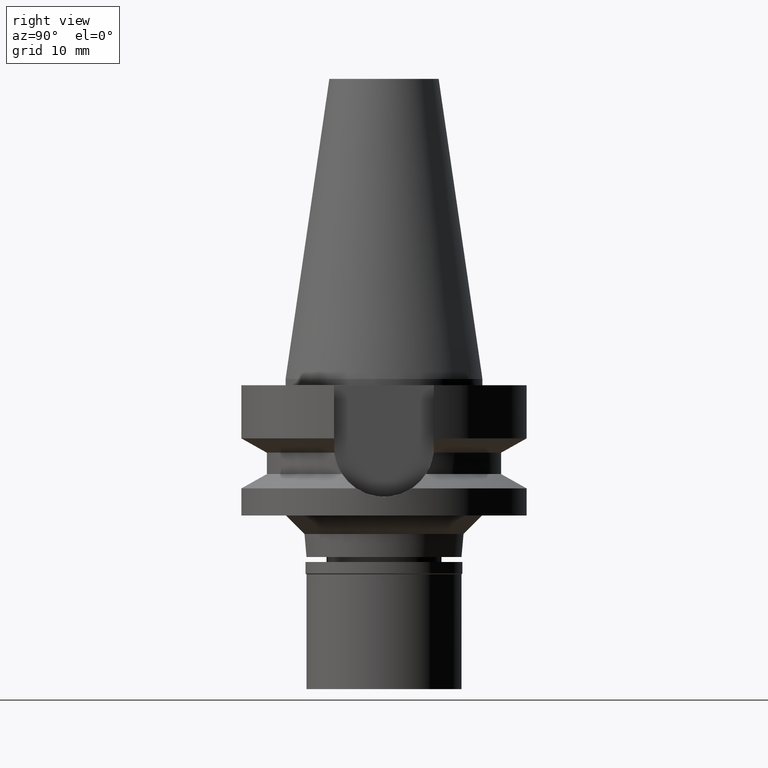
[diagram: clean part render]
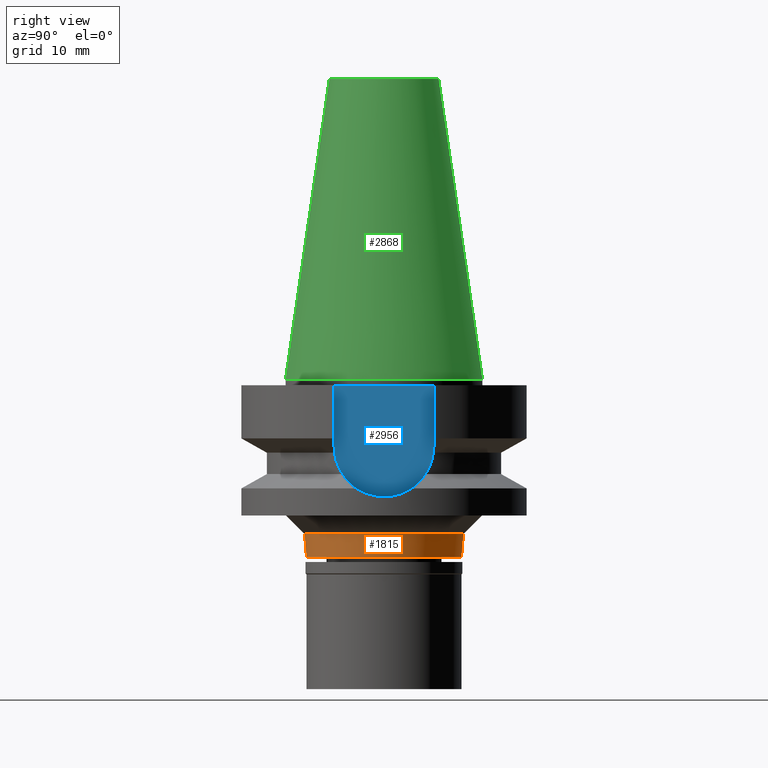
[diagram: same view with three faces highlighted in distinct colors, each labeled with its STEP entity id]
A machine part, right view with three faces highlighted in distinct colors.
Their STEP definitions:

[orange] entity #1815 — the highlighted conical surface has half-angle 5 deg.
#94 = EDGE_CURVE ( 'NONE', #1888, #157, #3012, .T. ) ;
#95 = CARTESIAN_POINT ( 'NONE',  ( 0.0000000000000000000, -12.82370805505000000, -25.00000000000000000 ) ) ;
#157 = VERTEX_POINT ( 'NONE', #2553 ) ;
#235 = DIRECTION ( 'NONE',  ( 0.0000000000000000000, 0.0000000000000000000, 1.000000000000000000 ) ) ;
#262 = DIRECTION ( 'NONE',  ( 0.0000000000000000000, 0.0000000000000000000, 1.000000000000000000 ) ) ;
#285 = AXIS2_PLACEMENT_3D ( 'NONE', #451, #235, #2404 ) ;
#326 = LINE ( 'NONE', #95, #1791 ) ;
#406 = ORIENTED_EDGE ( 'NONE', *, *, #94, .F. ) ;
#451 = CARTESIAN_POINT ( 'NONE',  ( 0.0000000000000000000, 0.0000000000000000000, -26.84999999999999787 ) ) ;
#478 = FACE_OUTER_BOUND ( 'NONE', #3037, .T. ) ;
#487 = AXIS2_PLACEMENT_3D ( 'NONE', #3045, #1912, #1470 ) ;
#626 = EDGE_CURVE ( 'NONE', #2545, #1811, #326, .T. ) ;
#737 = CIRCLE ( 'NONE', #487, 12.50000000000000000 ) ;
#809 = EDGE_CURVE ( 'NONE', #1811, #157, #737, .T. ) ;
#833 = VECTOR ( 'NONE', #2506, 1000.000000000000114 ) ;
#1031 = CIRCLE ( 'NONE', #2752, 12.82370805503999911 ) ;
#1336 = CONICAL_SURFACE ( 'NONE', #285, 12.66185402752000044, 0.08726646259969973729 ) ;
#1470 = DIRECTION ( 'NONE',  ( 0.0000000000000000000, -1.000000000000000000, 0.0000000000000000000 ) ) ;
#1791 = VECTOR ( 'NONE', #2540, 1000.000000000000114 ) ;
#1811 = VERTEX_POINT ( 'NONE', #2416 ) ;
#1815 = ADVANCED_FACE ( 'NONE', ( #478 ), #1336, .T. ) ;
#1888 = VERTEX_POINT ( 'NONE', #2137 ) ;
#1912 = DIRECTION ( 'NONE',  ( 0.0000000000000000000, 0.0000000000000000000, 1.000000000000000000 ) ) ;
#1922 = DIRECTION ( 'NONE',  ( 0.0000000000000000000, -1.000000000000000000, 0.0000000000000000000 ) ) ;
#2137 = CARTESIAN_POINT ( 'NONE',  ( 0.0000000000000000000, 12.82370805505000000, -25.00000000000000000 ) ) ;
#2404 = DIRECTION ( 'NONE',  ( 0.0000000000000000000, 1.000000000000000000, 0.0000000000000000000 ) ) ;
#2416 = CARTESIAN_POINT ( 'NONE',  ( 0.0000000000000000000, -12.50000000000000000, -28.69999999999999929 ) ) ;
#2506 = DIRECTION ( 'NONE',  ( 0.0000000000000000000, -0.08715574274833878810, -0.9961946980916859262 ) ) ;
#2528 = ORIENTED_EDGE ( 'NONE', *, *, #2677, .F. ) ;
#2540 = DIRECTION ( 'NONE',  ( 0.0000000000000000000, 0.08715574274833878810, -0.9961946980916859262 ) ) ;
#2545 = VERTEX_POINT ( 'NONE', #3026 ) ;
#2553 = CARTESIAN_POINT ( 'NONE',  ( 0.0000000000000000000, 12.50000000000000000, -28.69999999999999929 ) ) ;
#2629 = CARTESIAN_POINT ( 'NONE',  ( 0.0000000000000000000, 0.0000000000000000000, -25.00000000000000000 ) ) ;
#2638 = ORIENTED_EDGE ( 'NONE', *, *, #809, .T. ) ;
#2677 = EDGE_CURVE ( 'NONE', #2545, #1888, #1031, .T. ) ;
#2752 = AXIS2_PLACEMENT_3D ( 'NONE', #2629, #262, #1922 ) ;
#2776 = CARTESIAN_POINT ( 'NONE',  ( 0.0000000000000000000, 12.82370805505000000, -25.00000000000000000 ) ) ;
#2812 = ORIENTED_EDGE ( 'NONE', *, *, #626, .T. ) ;
#3012 = LINE ( 'NONE', #2776, #833 ) ;
#3026 = CARTESIAN_POINT ( 'NONE',  ( 0.0000000000000000000, -12.82370805505000000, -25.00000000000000000 ) ) ;
#3037 = EDGE_LOOP ( 'NONE', ( #2528, #2812, #2638, #406 ) ) ;
#3045 = CARTESIAN_POINT ( 'NONE',  ( 0.0000000000000000000, 0.0000000000000000000, -28.69999999999999929 ) ) ;

[blue] entity #2956 — the highlighted planar face has unit normal (1, 0, 0).
#50 = CARTESIAN_POINT ( 'NONE',  ( 16.29999999999999716, -8.050000000000000711, -10.94999999999999929 ) ) ;
#125 = VECTOR ( 'NONE', #1258, 1000.000000000000000 ) ;
#209 = DIRECTION ( 'NONE',  ( 1.000000000000000000, 0.0000000000000000000, 0.0000000000000000000 ) ) ;
#279 = EDGE_CURVE ( 'NONE', #919, #3014, #1247, .T. ) ;
#592 = CARTESIAN_POINT ( 'NONE',  ( 16.29999999999999716, -8.050000000000000711, -1.000000000000000000 ) ) ;
#632 = CARTESIAN_POINT ( 'NONE',  ( 16.29999999999999716, 8.050000000000000711, -10.94999999999999929 ) ) ;
#647 = LINE ( 'NONE', #1859, #888 ) ;
#678 = AXIS2_PLACEMENT_3D ( 'NONE', #1901, #209, #2349 ) ;
#762 = ORIENTED_EDGE ( 'NONE', *, *, #279, .F. ) ;
#888 = VECTOR ( 'NONE', #1664, 1000.000000000000000 ) ;
#919 = VERTEX_POINT ( 'NONE', #930 ) ;
#930 = CARTESIAN_POINT ( 'NONE',  ( 16.29999999999999716, -8.050000000000000711, -10.94999999999999929 ) ) ;
#938 = PLANE ( 'NONE',  #678 ) ;
#1022 = CIRCLE ( 'NONE', #2468, 8.050000000000000711 ) ;
#1032 = EDGE_CURVE ( 'NONE', #1118, #919, #1022, .T. ) ;
#1050 = DIRECTION ( 'NONE',  ( 0.0000000000000000000, -1.000000000000000000, 0.0000000000000000000 ) ) ;
#1118 = VERTEX_POINT ( 'NONE', #632 ) ;
#1155 = FACE_OUTER_BOUND ( 'NONE', #2210, .T. ) ;
#1247 = LINE ( 'NONE', #50, #125 ) ;
#1258 = DIRECTION ( 'NONE',  ( 0.0000000000000000000, 0.0000000000000000000, 1.000000000000000000 ) ) ;
#1294 = LINE ( 'NONE', #2230, #2325 ) ;
#1373 = EDGE_CURVE ( 'NONE', #2648, #3014, #1294, .T. ) ;
#1664 = DIRECTION ( 'NONE',  ( 0.0000000000000000000, 0.0000000000000000000, -1.000000000000000000 ) ) ;
#1723 = DIRECTION ( 'NONE',  ( 0.0000000000000000000, 0.0000000000000000000, -1.000000000000000000 ) ) ;
#1859 = CARTESIAN_POINT ( 'NONE',  ( 16.29999999999999716, 8.050000000000000711, -1.000000000000000000 ) ) ;
#1864 = ORIENTED_EDGE ( 'NONE', *, *, #1373, .T. ) ;
#1901 = CARTESIAN_POINT ( 'NONE',  ( 16.29999999999999716, 0.0000000000000000000, 0.0000000000000000000 ) ) ;
#2008 = DIRECTION ( 'NONE',  ( -1.000000000000000000, 0.0000000000000000000, 0.0000000000000000000 ) ) ;
#2070 = CARTESIAN_POINT ( 'NONE',  ( 16.29999999999999716, 8.050000000000000711, -1.000000000000000000 ) ) ;
#2078 = ORIENTED_EDGE ( 'NONE', *, *, #2625, .F. ) ;
#2201 = CARTESIAN_POINT ( 'NONE',  ( 16.29999999999999716, 0.0000000000000000000, -10.94999999999999929 ) ) ;
#2210 = EDGE_LOOP ( 'NONE', ( #762, #2267, #2078, #1864 ) ) ;
#2230 = CARTESIAN_POINT ( 'NONE',  ( 16.29999999999999716, 8.050000000000000711, -1.000000000000000000 ) ) ;
#2267 = ORIENTED_EDGE ( 'NONE', *, *, #1032, .F. ) ;
#2325 = VECTOR ( 'NONE', #1050, 1000.000000000000000 ) ;
#2349 = DIRECTION ( 'NONE',  ( 0.0000000000000000000, 1.000000000000000000, 0.0000000000000000000 ) ) ;
#2468 = AXIS2_PLACEMENT_3D ( 'NONE', #2201, #2008, #1723 ) ;
#2625 = EDGE_CURVE ( 'NONE', #2648, #1118, #647, .T. ) ;
#2648 = VERTEX_POINT ( 'NONE', #2070 ) ;
#2956 = ADVANCED_FACE ( 'NONE', ( #1155 ), #938, .T. ) ;
#3014 = VERTEX_POINT ( 'NONE', #592 ) ;

[green] entity #2868 — the highlighted conical surface has half-angle 8.297 deg.
#12 = DIRECTION ( 'NONE',  ( 0.0000000000000000000, 0.0000000000000000000, -1.000000000000000000 ) ) ;
#68 = AXIS2_PLACEMENT_3D ( 'NONE', #2361, #12, #415 ) ;
#174 = ORIENTED_EDGE ( 'NONE', *, *, #296, .F. ) ;
#199 = ORIENTED_EDGE ( 'NONE', *, *, #2209, .F. ) ;
#213 = LINE ( 'NONE', #934, #2427 ) ;
#252 = DIRECTION ( 'NONE',  ( 0.0000000000000000000, -0.1443043893539925626, -0.9895333461855498891 ) ) ;
#296 = EDGE_CURVE ( 'NONE', #1421, #845, #837, .T. ) ;
#353 = CARTESIAN_POINT ( 'NONE',  ( 0.0000000000000000000, -8.816791732783000768, 48.39999999999999858 ) ) ;
#415 = DIRECTION ( 'NONE',  ( 0.0000000000000000000, 1.000000000000000000, 0.0000000000000000000 ) ) ;
#466 = CARTESIAN_POINT ( 'NONE',  ( 0.0000000000000000000, 8.816791732783000768, 48.39999999999999858 ) ) ;
#503 = LINE ( 'NONE', #466, #2467 ) ;
#538 = EDGE_CURVE ( 'NONE', #646, #845, #213, .T. ) ;
#646 = VERTEX_POINT ( 'NONE', #353 ) ;
#693 = CARTESIAN_POINT ( 'NONE',  ( 0.0000000000000000000, 15.87500000000000000, -1.918465386551999891E-13 ) ) ;
#791 = EDGE_CURVE ( 'NONE', #1731, #646, #2038, .T. ) ;
#837 = CIRCLE ( 'NONE', #2276, 15.87500000000000000 ) ;
#845 = VERTEX_POINT ( 'NONE', #2788 ) ;
#934 = CARTESIAN_POINT ( 'NONE',  ( 0.0000000000000000000, -8.816791732783000768, 48.39999999999999858 ) ) ;
#1018 = CARTESIAN_POINT ( 'NONE',  ( 0.0000000000000000000, 1.521011324540999938E-14, -3.694822225953000089E-13 ) ) ;
#1053 = CARTESIAN_POINT ( 'NONE',  ( 0.0000000000000000000, 8.816791732783000768, 48.39999999999999858 ) ) ;
#1143 = CONICAL_SURFACE ( 'NONE', #1461, 12.34589586639000025, 0.1448099680379422438 ) ;
#1210 = ORIENTED_EDGE ( 'NONE', *, *, #791, .T. ) ;
#1421 = VERTEX_POINT ( 'NONE', #693 ) ;
#1434 = DIRECTION ( 'NONE',  ( 0.0000000000000000000, -1.000000000000000000, 0.0000000000000000000 ) ) ;
#1441 = DIRECTION ( 'NONE',  ( 0.0000000000000000000, 0.1443043893539925626, -0.9895333461855498891 ) ) ;
#1461 = AXIS2_PLACEMENT_3D ( 'NONE', #1688, #1928, #1434 ) ;
#1688 = CARTESIAN_POINT ( 'NONE',  ( 0.0000000000000000000, 1.521011324540999938E-14, 24.19999999999999929 ) ) ;
#1731 = VERTEX_POINT ( 'NONE', #1053 ) ;
#1739 = FACE_OUTER_BOUND ( 'NONE', #2801, .T. ) ;
#1928 = DIRECTION ( 'NONE',  ( 0.0000000000000000000, 0.0000000000000000000, -1.000000000000000000 ) ) ;
#2038 = CIRCLE ( 'NONE', #68, 8.816791732783000768 ) ;
#2209 = EDGE_CURVE ( 'NONE', #1731, #1421, #503, .T. ) ;
#2276 = AXIS2_PLACEMENT_3D ( 'NONE', #1018, #2682, #2644 ) ;
#2361 = CARTESIAN_POINT ( 'NONE',  ( 0.0000000000000000000, 1.521011324540999938E-14, 48.39999999999999858 ) ) ;
#2427 = VECTOR ( 'NONE', #252, 1000.000000000000114 ) ;
#2448 = ORIENTED_EDGE ( 'NONE', *, *, #538, .T. ) ;
#2467 = VECTOR ( 'NONE', #1441, 1000.000000000000114 ) ;
#2644 = DIRECTION ( 'NONE',  ( 0.0000000000000000000, 1.000000000000000000, 0.0000000000000000000 ) ) ;
#2682 = DIRECTION ( 'NONE',  ( 0.0000000000000000000, 0.0000000000000000000, -1.000000000000000000 ) ) ;
#2788 = CARTESIAN_POINT ( 'NONE',  ( 0.0000000000000000000, -15.87500000000000000, -1.918465386551999891E-13 ) ) ;
#2801 = EDGE_LOOP ( 'NONE', ( #1210, #2448, #174, #199 ) ) ;
#2868 = ADVANCED_FACE ( 'NONE', ( #1739 ), #1143, .T. ) ;